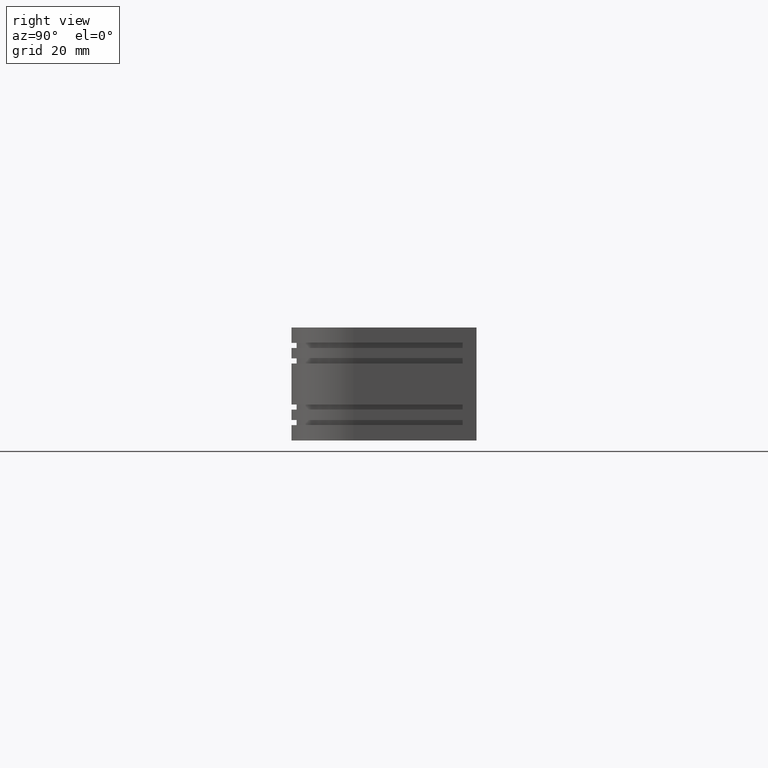
[diagram: clean part render]
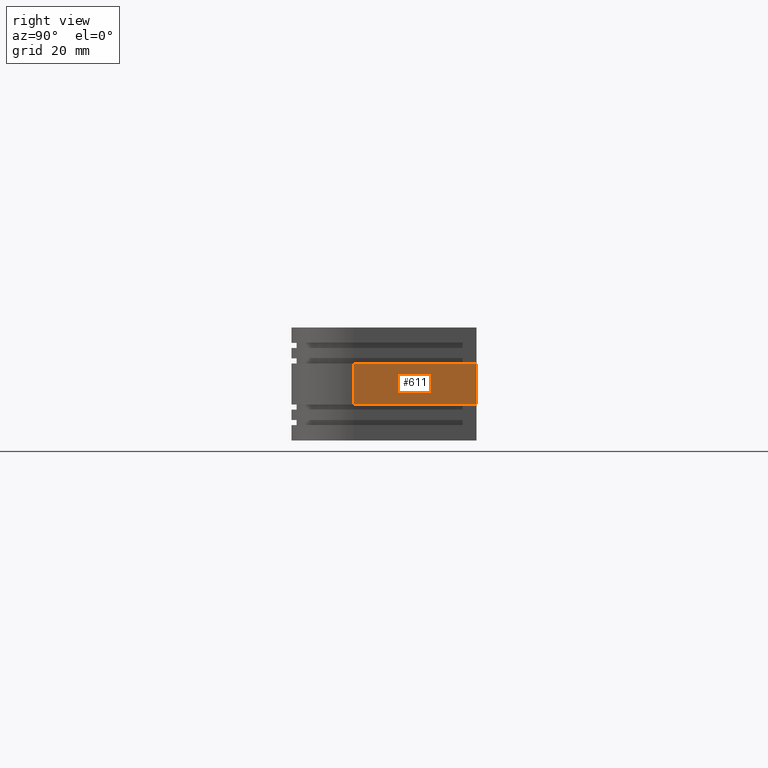
[diagram: same view with one face highlighted and labeled with its STEP entity id]
A machine part, right view. The second image highlights one B-rep face of the part: STEP entity #611.
In plain terms, the highlighted face is a freeform B-spline surface patch.
Its self-contained STEP definition (entity closure, byte-faithful):
#576=CARTESIAN_POINT('',(132.999900000000000,-25.198799953483348,-4.399599984494364));
#577=CARTESIAN_POINT('',(132.999900000000000,-25.198799953483341,4.399600199071254));
#578=CARTESIAN_POINT('',(132.999900000000000,1.198800597213507,-4.399599984494364));
#579=CARTESIAN_POINT('',(132.999900000000000,1.198800597213507,4.399600199071254));
#580=B_SPLINE_SURFACE_WITH_KNOTS('',1,1,((#576,#578),(#577,#579)),.UNSPECIFIED.,.F.,.F.,.U.,(2,2),(2,2),(0.0,8.799200183565617),(0.0,26.397600550696851),.UNSPECIFIED.);
#581=CARTESIAN_POINT('',(132.999900000000000,-24.0,4.000000000000085));
#582=VERTEX_POINT('',#581);
#583=CARTESIAN_POINT('',(132.999900000000000,0.0,4.000000000000085));
#584=VERTEX_POINT('',#583);
#585=CARTESIAN_POINT('',(132.999900000000000,-24.0,4.000000000000085));
#586=CARTESIAN_POINT('',(132.999900000000000,0.0,4.000000000000085));
#587=QUASI_UNIFORM_CURVE('',1,(#585,#586),.UNSPECIFIED.,.F.,.U.);
#588=EDGE_CURVE('',#582,#584,#587,.T.);
#589=ORIENTED_EDGE('',*,*,#588,.F.);
#590=CARTESIAN_POINT('',(132.999900000000000,-24.0,-3.999999999999915));
#591=VERTEX_POINT('',#590);
#592=CARTESIAN_POINT('',(132.999900000000000,-24.0,-3.999999999999915));
#593=CARTESIAN_POINT('',(132.999900000000000,-24.0,4.000000000000085));
#594=QUASI_UNIFORM_CURVE('',1,(#592,#593),.UNSPECIFIED.,.F.,.U.);
#595=EDGE_CURVE('',#591,#582,#594,.T.);
#596=ORIENTED_EDGE('',*,*,#595,.F.);
#597=CARTESIAN_POINT('',(132.999900000000000,0.0,-3.999999999999915));
#598=VERTEX_POINT('',#597);
#599=CARTESIAN_POINT('',(132.999900000000000,-24.0,-3.999999999999915));
#600=CARTESIAN_POINT('',(132.999900000000000,0.0,-3.999999999999915));
#601=QUASI_UNIFORM_CURVE('',1,(#599,#600),.UNSPECIFIED.,.F.,.U.);
#602=EDGE_CURVE('',#591,#598,#601,.T.);
#603=ORIENTED_EDGE('',*,*,#602,.T.);
#604=CARTESIAN_POINT('',(132.999900000000000,0.0,-3.999999999999915));
#605=CARTESIAN_POINT('',(132.999900000000000,0.0,4.000000000000085));
#606=QUASI_UNIFORM_CURVE('',1,(#604,#605),.UNSPECIFIED.,.F.,.U.);
#607=EDGE_CURVE('',#598,#584,#606,.T.);
#608=ORIENTED_EDGE('',*,*,#607,.T.);
#609=EDGE_LOOP('',(#589,#596,#603,#608));
#610=FACE_OUTER_BOUND('',#609,.T.);
#611=ADVANCED_FACE('',(#610),#580,.F.);